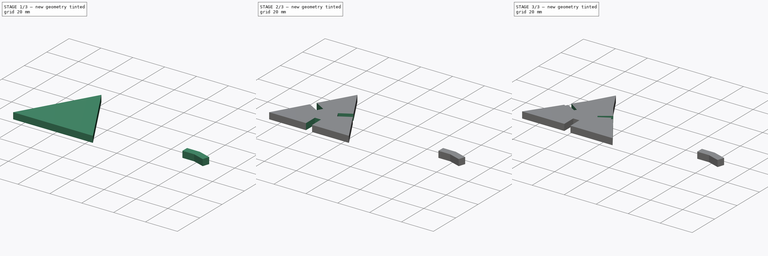
[diagram: build sequence overview — one tinted view per stage of 3, left to right]
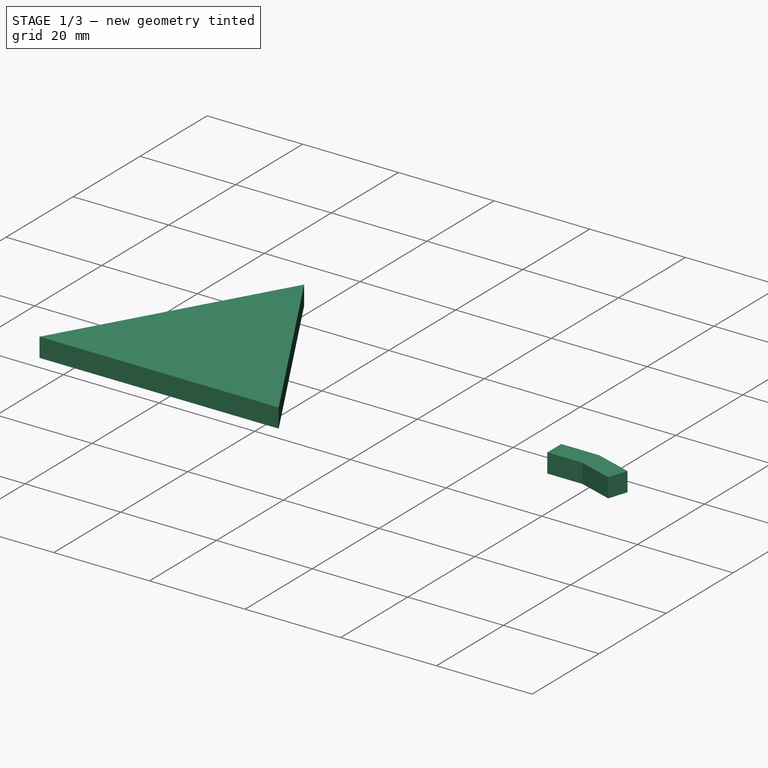
[diagram: stage 1 of 3 — iso view after this stage's code; geometry added in this stage tinted green]
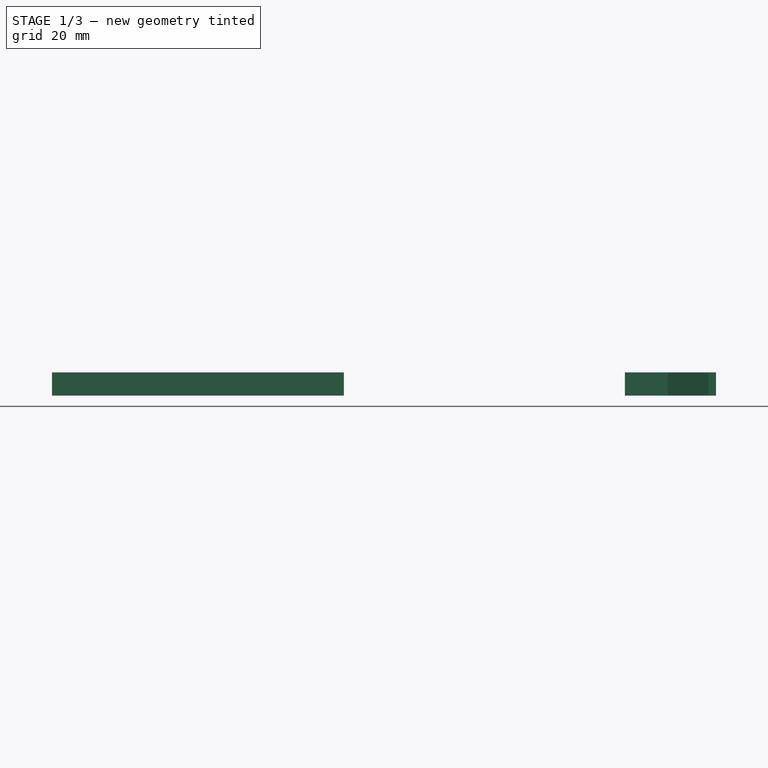
[diagram: stage 1 of 3 — front view after this stage's code; geometry added in this stage tinted green]
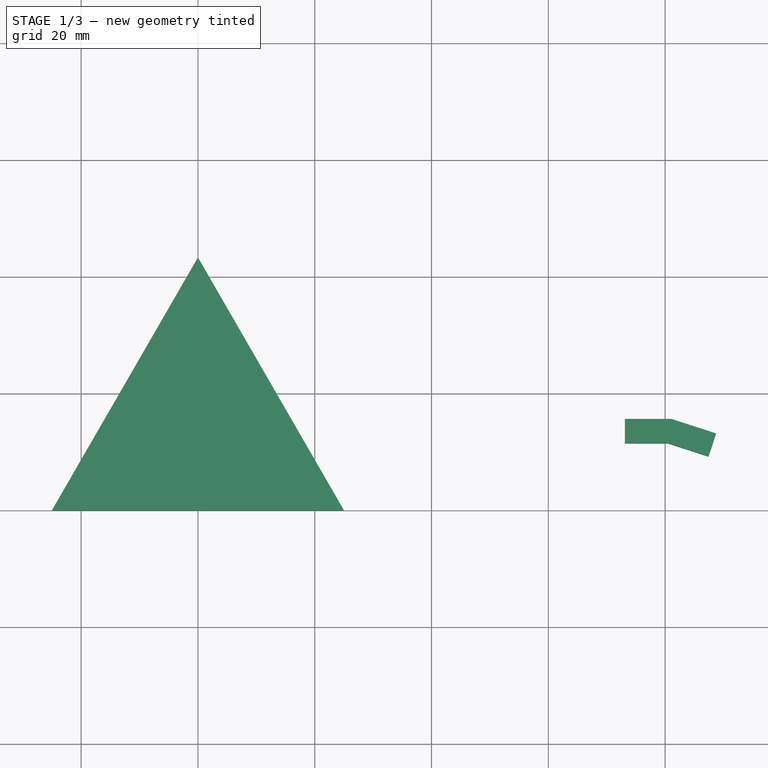
[diagram: stage 1 of 3 — top view after this stage's code; geometry added in this stage tinted green]
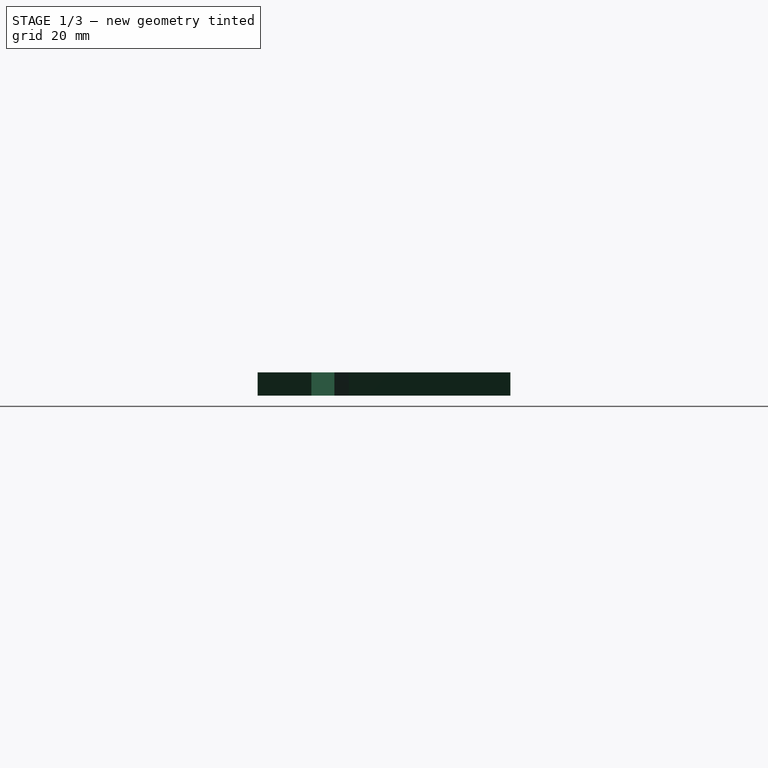
[diagram: stage 1 of 3 — right view after this stage's code; geometry added in this stage tinted green]
FCSTD DOCUMENT  (FreeCAD 0.18.4R)
Label: geodesic-dome
License: All rights reserved
LicenseURL: http://en.wikipedia.org/wiki/All_rights_reserved
objects: Sketcher::SketchObject×5, PartDesign::Pad×3, PartDesign::Body×3, PartDesign::Pocket×2, Spreadsheet::Sheet×1
note: 18 computed .brp shape members not serialized (recipe doc carries the construction recipe); baked Part::Feature solids carry a one-line shape summary decoded from their .brp

FEATURE [PartDesign::Body] Body  label="faceAAB"
  Group = -> [Sketch,Pad,Sketch001,Pocket]
  Origin = -> Origin
  Tip = -> Pocket
FEATURE [Sketcher::SketchObject] Sketch003
  MapMode = 5
  Support = -> [XY_Plane001]
  expr: Constraints[6] = data.height
  sketch-geometry (3):
    g0: LineSegment StartX=1.07e-14 StartY=43.3013 StartZ=0 EndX=-25 EndY=0 EndZ=0
    g1: LineSegment StartX=-25 StartY=0 StartZ=0 EndX=25 EndY=0 EndZ=0
    g2: LineSegment StartX=25 StartY=0 StartZ=0 EndX=1.07e-14 EndY=43.3013 EndZ=0
  constraints (8):
    c: Coincident(g0,g1)
    c: Coincident(g1,g2)
    c: Coincident(g0,g2)
    c: Angle(g1,g0) = 1.0472
    c: PointOnObject(g0,g-1)
    c: Symmetric(g0,g1,g-2)
    c: Distance(g0) = 50
    c: Equal(g2,g0)
FEATURE [PartDesign::Pad] Pad001
  Length = 4
  Length2 = 100
  Profile = -> Sketch003
  Type = 0
  expr: Length = data.thickness
FEATURE [PartDesign::Body] Body001  label="faceBBB"
  Group = -> [Sketch003,Pad001,Sketch002,Pocket001]
  Origin = -> Origin001
  Placement = pos=(70,0,0) rot=(0,0,1;0rad)
  Tip = -> Pocket001
FEATURE [Sketcher::SketchObject] Sketch004
  MapMode = 5
  Support = -> [XY_Plane002]
  expr: Constraints[13] = data.thickness_out
  expr: Constraints[12] = data.thickness_out
  expr: Constraints[11] = data.pocket
  expr: Constraints[10] = data.pocket
  sketch-geometry (6):
    g0: LineSegment StartX=73.1132 StartY=11.4838 StartZ=0 EndX=73.1132 EndY=15.6338 EndZ=0
    g1: LineSegment StartX=73.1132 StartY=15.6338 StartZ=0 EndX=81.1132 EndY=15.6338 EndZ=0
    g2: LineSegment StartX=81.1132 StartY=15.6338 StartZ=0 EndX=88.7216 EndY=13.1617 EndZ=0
    g3: LineSegment StartX=88.7216 StartY=13.1617 StartZ=0 EndX=87.4392 EndY=9.21483 EndZ=0
    g4: LineSegment StartX=87.4392 StartY=9.21483 StartZ=0 EndX=80.4559 EndY=11.4838 EndZ=0
    g5: LineSegment StartX=80.4559 StartY=11.4838 StartZ=0 EndX=73.1132 EndY=11.4838 EndZ=0
  constraints (16):
    c: Vertical(g0)
    c: Coincident(g0,g1)
    c: Coincident(g1,g2)
    c: Coincident(g2,g3)
    c: Coincident(g3,g4)
    c: Coincident(g4,g5)
    c: Coincident(g5,g0)
    c: Parallel(g1,g5)
    c: Angle(g2,g1,g1) = 0.314159
    c: Horizontal(g5)
    c: DistanceX(g1,g1) = 8
    c: Distance(g2) = 8
    c: DistanceY(g0,g0) = 4.15
    c: Distance(g3) = 4.15
    c: Perpendicular(g2,g3)
    c: Perpendicular(g3,g4)
FEATURE [PartDesign::Pad] Pad003
  Length = 4
  Length2 = 100
  Profile = -> Sketch004
  Type = 0
  expr: Length = data.thickness
FEATURE [PartDesign::Body] Body002  label="joint"
  Group = -> [Sketch004,Pad003]
  Origin = -> Origin002
  Placement = pos=(40,0,0) rot=(0,0,1;0rad)
  Tip = -> Pad003
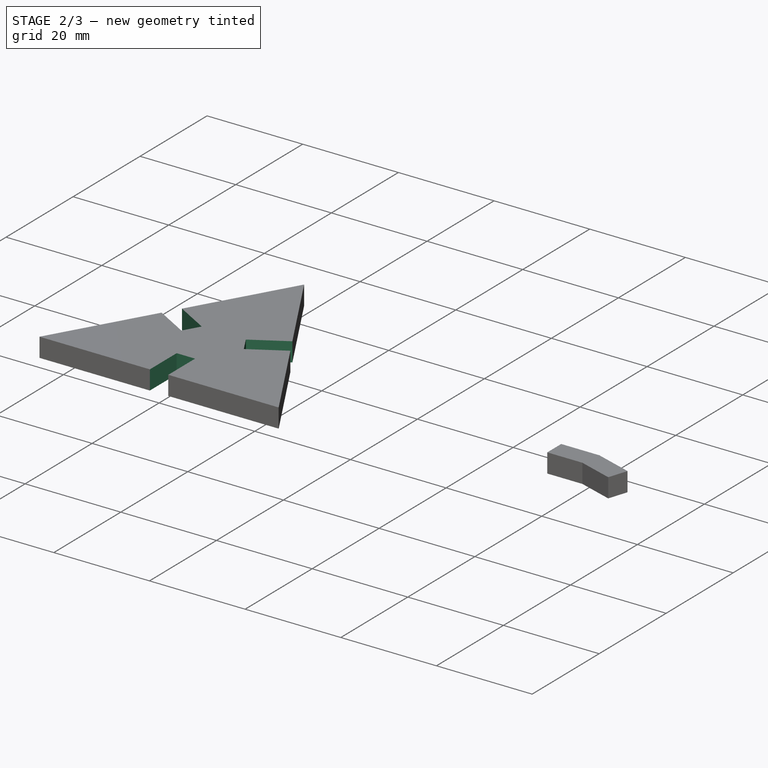
[diagram: stage 2 of 3 — iso view after this stage's code; geometry added in this stage tinted green]
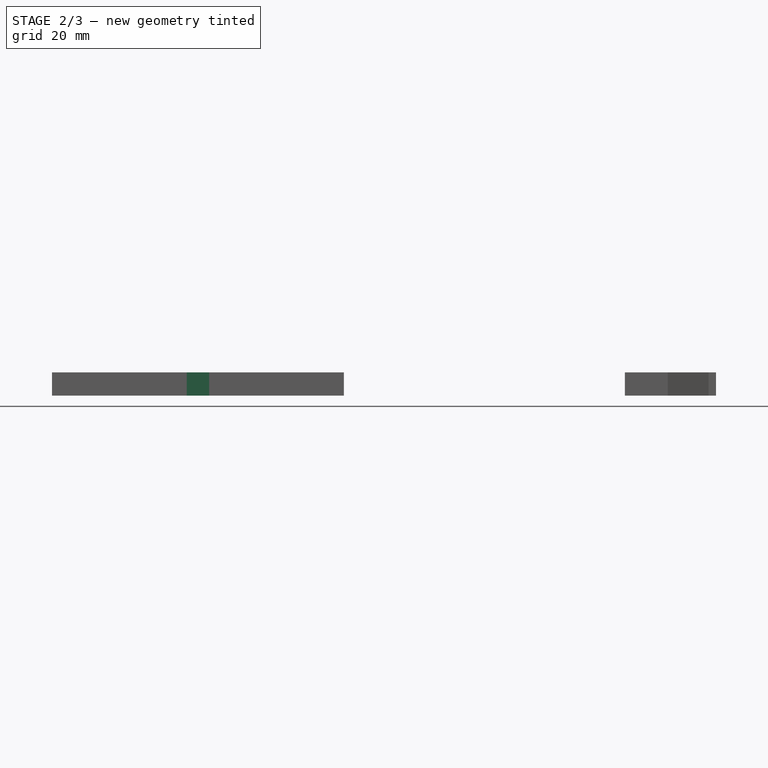
[diagram: stage 2 of 3 — front view after this stage's code; geometry added in this stage tinted green]
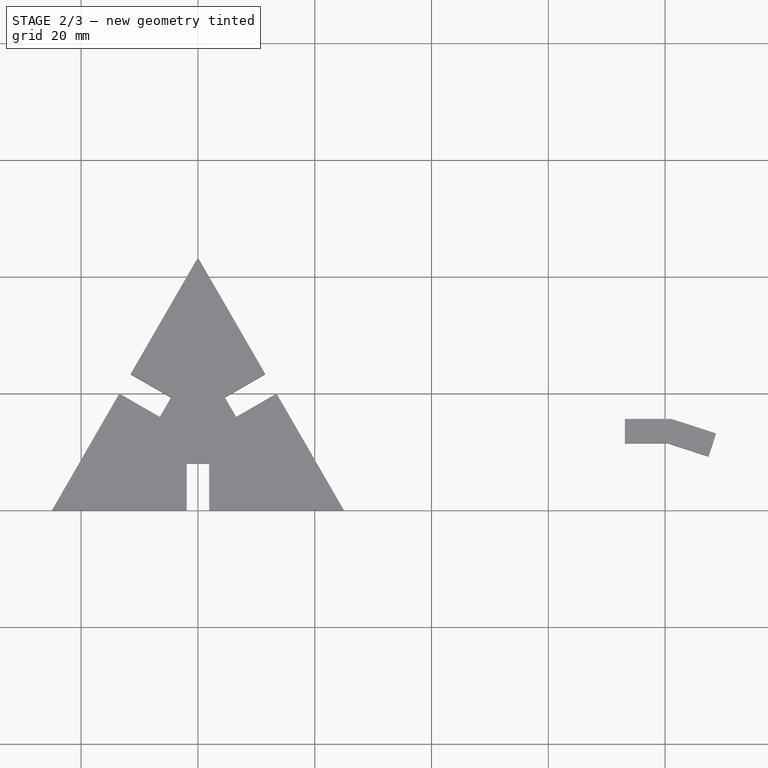
[diagram: stage 2 of 3 — top view after this stage's code; geometry added in this stage tinted green]
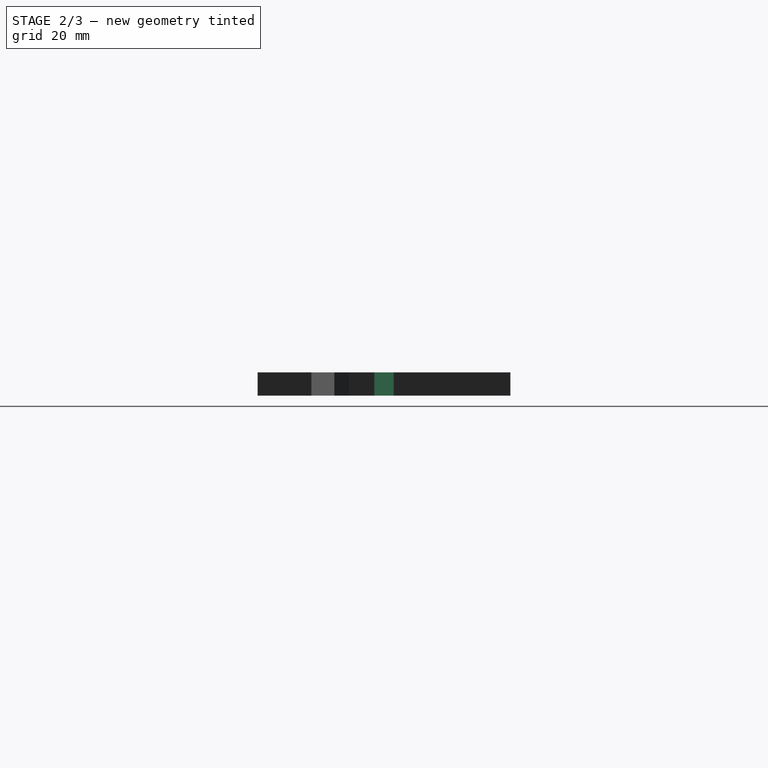
[diagram: stage 2 of 3 — right view after this stage's code; geometry added in this stage tinted green]
FEATURE [Sketcher::SketchObject] Sketch002
  ExternalGeometry = -> [Pad001]
  MapMode = 5
  Placement = pos=(0,0,4) rot=(0,0,1;0rad)
  Support = -> [Pad001]
  expr: Constraints[44] = data.pocket
  expr: Constraints[40] = data.thickness_int
  expr: Constraints[24] = data.pocket
  expr: Constraints[20] = data.thickness_int
  expr: Constraints[11] = data.pocket
  expr: Constraints[10] = data.thickness_int
  sketch-geometry (21):
    g0: LineSegment [constr] StartX=1.05e-14 StartY=43.3013 StartZ=0 EndX=1.05e-14 EndY=0 EndZ=0
    g1: LineSegment StartX=-1.925 StartY=0 StartZ=0 EndX=1.925 EndY=0 EndZ=0
    g2: LineSegment StartX=1.925 StartY=0 StartZ=0 EndX=1.925 EndY=8 EndZ=0
    g3: LineSegment StartX=1.925 StartY=8 StartZ=0 EndX=-1.925 EndY=8 EndZ=0
    g4: LineSegment StartX=-1.925 StartY=8 StartZ=0 EndX=-1.925 EndY=0 EndZ=0
    g5: LineSegment StartX=-13.4625 StartY=19.9835 StartZ=0 EndX=-11.5375 EndY=23.3177 EndZ=0
    g6: LineSegment StartX=-11.5375 StartY=23.3177 StartZ=0 EndX=-4.6093 EndY=19.3177 EndZ=0
    g7: LineSegment StartX=-4.6093 StartY=19.3177 StartZ=0 EndX=-6.5343 EndY=15.9835 EndZ=0
    g8: LineSegment StartX=-6.5343 StartY=15.9835 StartZ=0 EndX=-13.4625 EndY=19.9835 EndZ=0
    g9: LineSegment [constr] StartX=-13.4625 StartY=19.9835 StartZ=0 EndX=-4.6093 EndY=19.3177 EndZ=0
    g10: LineSegment [constr] StartX=-6.5343 StartY=15.9835 StartZ=0 EndX=-11.5375 EndY=23.3177 EndZ=0
    g11: GeomPoint X=-9.0359 Y=19.6506 Z=0
    g12: LineSegment [constr] StartX=-9.0359 StartY=19.6506 StartZ=0 EndX=-12.5 EndY=21.6506 EndZ=0
    g13: LineSegment StartX=11.5375 StartY=23.3177 StartZ=0 EndX=13.4625 EndY=19.9835 EndZ=0
    g14: LineSegment StartX=13.4625 StartY=19.9835 StartZ=0 EndX=6.5343 EndY=15.9835 EndZ=0
    g15: LineSegment StartX=6.5343 StartY=15.9835 StartZ=0 EndX=4.6093 EndY=19.3177 EndZ=0
    g16: LineSegment StartX=4.6093 StartY=19.3177 StartZ=0 EndX=11.5375 EndY=23.3177 EndZ=0
    g17: LineSegment [constr] StartX=11.5375 StartY=23.3177 StartZ=0 EndX=6.5343 EndY=15.9835 EndZ=0
    g18: LineSegment [constr] StartX=4.6093 StartY=19.3177 StartZ=0 EndX=13.4625 EndY=19.9835 EndZ=0
    g19: GeomPoint X=9.0359 Y=19.6506 Z=0
    g20: LineSegment [constr] StartX=9.0359 StartY=19.6506 StartZ=0 EndX=12.5 EndY=21.6506 EndZ=0
  constraints (54):
    c: PointOnObject(g0,g-1)
    c: Vertical(g0)
    c: Coincident(g1,g2)
    c: Coincident(g2,g3)
    c: Coincident(g3,g4)
    c: Coincident(g4,g1)
    c: Horizontal(g1)
    c: Vertical(g2)
    c: Vertical(g4)
    c: PointOnObject(g1,g-1)
    c: DistanceX(g3,g3) = 3.85
    c: DistanceY(g4,g4) = 8
    c: Symmetric(g3,g2,g0)
    c: Coincident(g0,g-3)
    c: PointOnObject(g5,g-4)
    c: PointOnObject(g5,g-4)
    c: Coincident(g5,g6)
    c: Coincident(g6,g7)
    c: Coincident(g7,g8)
    c: Coincident(g8,g5)
    c: Distance(g5) = 3.85
    c: Perpendicular(g5,g8)
    c: Perpendicular(g5,g6)
    c: Parallel(g7,g5)
    c: Distance(g6) = 8
    c: Coincident(g9,g5)
    c: Coincident(g9,g6)
    c: Coincident(g10,g7)
    c: Coincident(g10,g5)
    c: PointOnObject(g11,g10)
    c: PointOnObject(g11,g9)
    c: Coincident(g12,g11)
    c: Perpendicular(g5,g12)
    c: Symmetric(g-4,g-4,g12)
    c: PointOnObject(g13,g-5)
    c: PointOnObject(g13,g-5)
    c: Coincident(g13,g14)
    c: Coincident(g14,g15)
    c: Coincident(g15,g16)
    c: Coincident(g16,g13)
    c: Distance(g13) = 3.85
    c: Parallel(g15,g13)
    c: Parallel(g16,g14)
    c: Perpendicular(g-5,g14)
    c: Distance(g14) = 8
    c: Coincident(g17,g16)
    c: Coincident(g17,g14)
    c: Coincident(g18,g15)
    c: Coincident(g18,g14)
    c: PointOnObject(g19,g17)
    c: PointOnObject(g19,g18)
    c: Coincident(g20,g19)
    c: Perpendicular(g13,g20)
    c: Symmetric(g-5,g-5,g20)
FEATURE [PartDesign::Pocket] Pocket001
  BaseFeature = -> Pad001
  Length = 5
  Length2 = 100
  Profile = -> Sketch002
  Type = 1
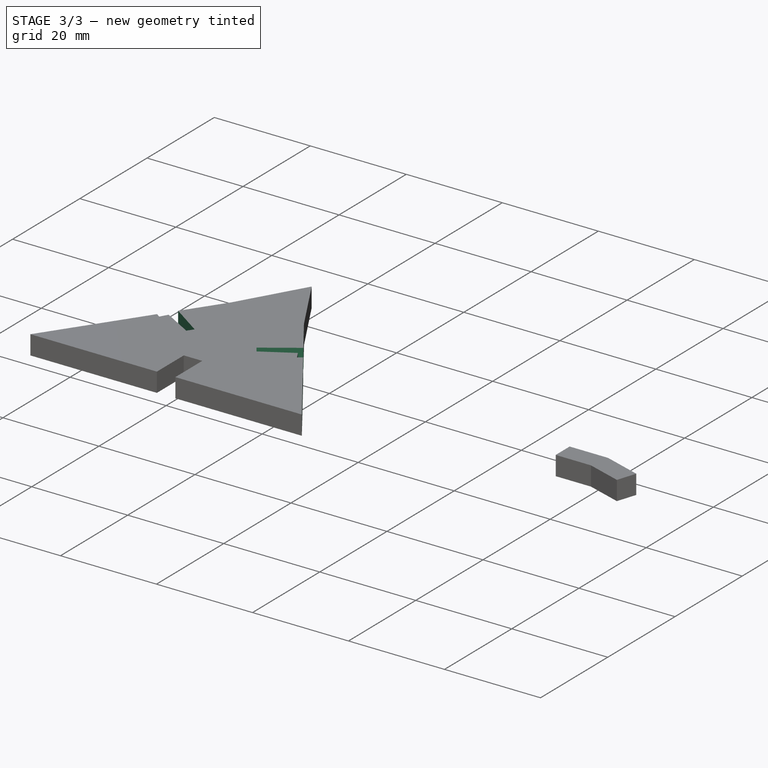
[diagram: stage 3 of 3 — iso view after this stage's code; geometry added in this stage tinted green]
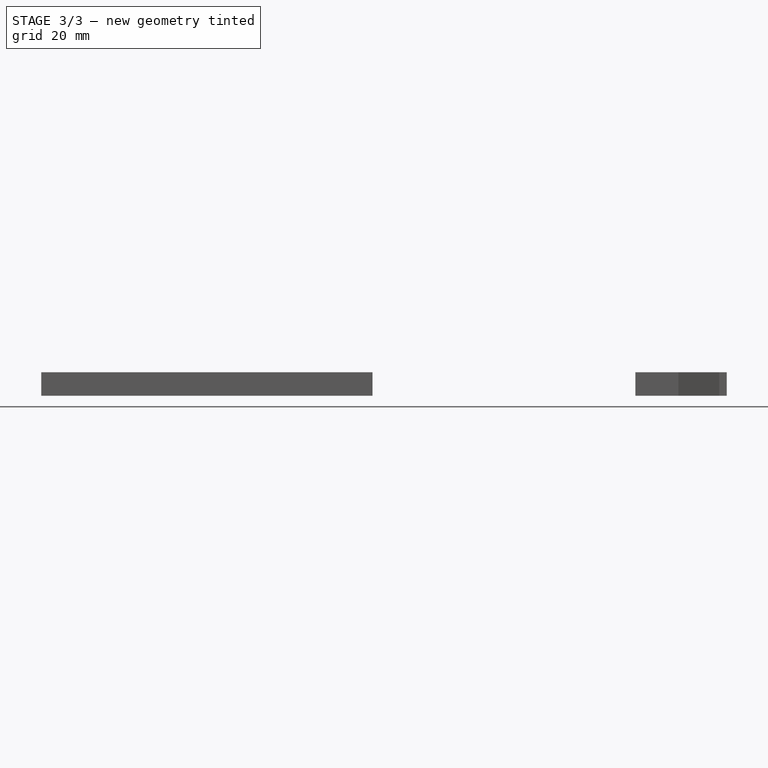
[diagram: stage 3 of 3 — front view after this stage's code; geometry added in this stage tinted green]
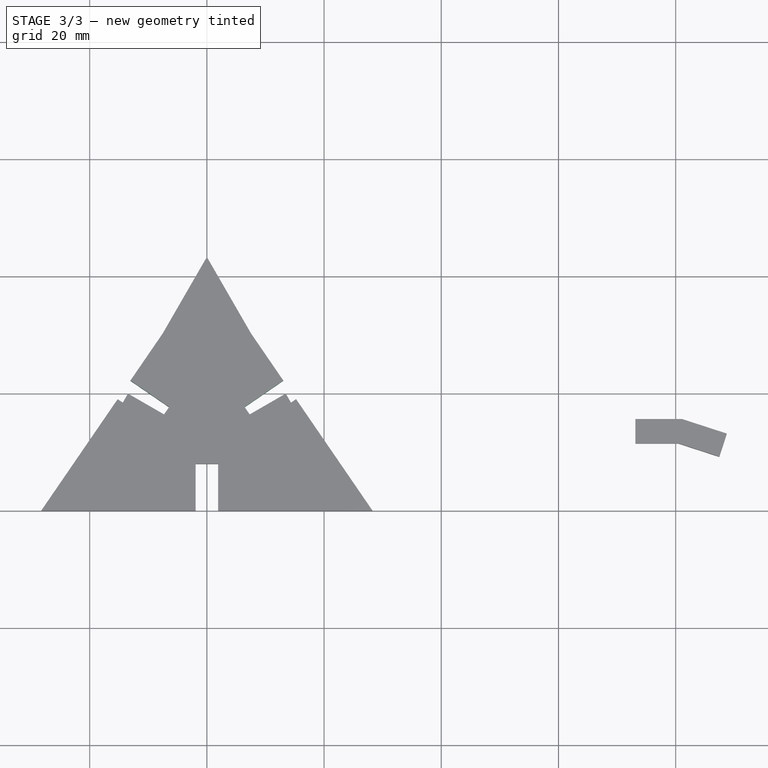
[diagram: stage 3 of 3 — top view after this stage's code; geometry added in this stage tinted green]
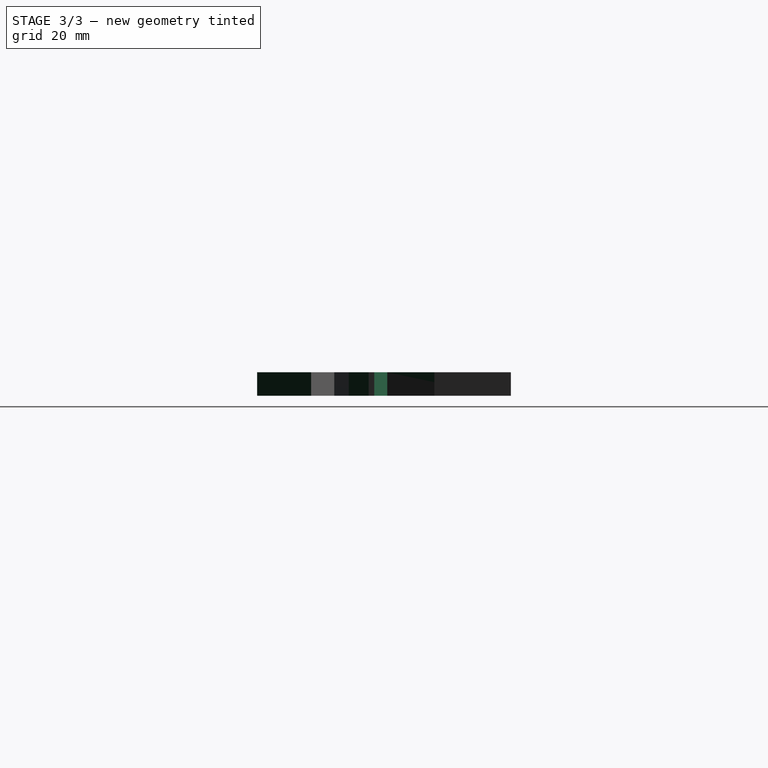
[diagram: stage 3 of 3 — right view after this stage's code; geometry added in this stage tinted green]
FEATURE [Spreadsheet::Sheet] Spreadsheet  label="data"
  cells = A1=tickness; B1(thickness)==4mm; A2=pocket size; B2(pocket)==8mm; A3=triangle height; B3(height)==50mm; A4=kerf; B4(kerf)==0.15mm; A5=thickness int; B5(thickness_int)==thickness - kerf; A6=thickness out; B6(thickness_out)==thickness + kerf
FEATURE [Sketcher::SketchObject] Sketch
  MapMode = 5
  Support = -> [XY_Plane]
  expr: Constraints[6] = data.height
  sketch-geometry (3):
    g0: LineSegment StartX=4.55778e-11 StartY=41.2409 StartZ=0 EndX=-28.2699 EndY=0 EndZ=0
    g1: LineSegment StartX=-28.2699 StartY=0 StartZ=0 EndX=28.2699 EndY=0 EndZ=0
    g2: LineSegment StartX=28.2699 StartY=0 StartZ=0 EndX=4.55778e-11 EndY=41.2409 EndZ=0
  constraints (8):
    c: Coincident(g0,g1)
    c: Coincident(g1,g2)
    c: Coincident(g0,g2)
    c: Angle(g1,g0) = 0.969879
    c: PointOnObject(g0,g-1)
    c: Symmetric(g0,g1,g-2)
    c: Distance(g0) = 50
    c: Equal(g0,g2)
FEATURE [PartDesign::Pad] Pad
  Length = 4
  Length2 = 100
  Profile = -> Sketch
  Type = 0
  expr: Length = data.thickness
FEATURE [Sketcher::SketchObject] Sketch001
  ExternalGeometry = -> [Pad]
  MapMode = 5
  Placement = pos=(0,0,4) rot=(0,0,1;0rad)
  Support = -> [Pad]
  expr: Constraints[44] = data.pocket
  expr: Constraints[40] = data.thickness_int
  expr: Constraints[24] = data.pocket
  expr: Constraints[20] = data.thickness_int
  expr: Constraints[11] = data.pocket
  expr: Constraints[10] = data.thickness_int
  sketch-geometry (21):
    g0: LineSegment [constr] StartX=4.55785e-11 StartY=41.2409 StartZ=0 EndX=4.55785e-11 EndY=0 EndZ=0
    g1: LineSegment StartX=-1.925 StartY=0 StartZ=0 EndX=1.925 EndY=0 EndZ=0
    g2: LineSegment StartX=1.925 StartY=0 StartZ=0 EndX=1.925 EndY=8 EndZ=0
    g3: LineSegment StartX=1.925 StartY=8 StartZ=0 EndX=-1.925 EndY=8 EndZ=0
    g4: LineSegment StartX=-1.925 StartY=8 StartZ=0 EndX=-1.925 EndY=0 EndZ=0
    g5: LineSegment StartX=-15.2234 StartY=19.0327 StartZ=0 EndX=-13.0466 EndY=22.2082 EndZ=0
    g6: LineSegment StartX=-13.0466 StartY=22.2082 StartZ=0 EndX=-6.44804 EndY=17.685 EndZ=0
    g7: LineSegment StartX=-6.44804 StartY=17.685 StartZ=0 EndX=-8.62483 EndY=14.5095 EndZ=0
    g8: LineSegment StartX=-8.62483 StartY=14.5095 StartZ=0 EndX=-15.2234 EndY=19.0327 EndZ=0
    g9: LineSegment [constr] StartX=-15.2234 StartY=19.0327 StartZ=0 EndX=-6.44804 EndY=17.685 EndZ=0
    g10: LineSegment [constr] StartX=-8.62483 StartY=14.5095 StartZ=0 EndX=-13.0466 EndY=22.2082 EndZ=0
    g11: GeomPoint X=-10.8357 Y=18.3588 Z=0
    g12: LineSegment [constr] StartX=-10.8357 StartY=18.3588 StartZ=0 EndX=-14.135 EndY=20.6204 EndZ=0
    g13: LineSegment StartX=13.0466 StartY=22.2082 StartZ=0 EndX=15.2234 EndY=19.0327 EndZ=0
    g14: LineSegment StartX=15.2234 StartY=19.0327 StartZ=0 EndX=8.62483 EndY=14.5095 EndZ=0
    g15: LineSegment StartX=8.62483 StartY=14.5095 StartZ=0 EndX=6.44804 EndY=17.685 EndZ=0
    g16: LineSegment StartX=6.44804 StartY=17.685 StartZ=0 EndX=13.0466 EndY=22.2082 EndZ=0
    g17: LineSegment [constr] StartX=13.0466 StartY=22.2082 StartZ=0 EndX=8.62483 EndY=14.5095 EndZ=0
    g18: LineSegment [constr] StartX=6.44804 StartY=17.685 StartZ=0 EndX=15.2234 EndY=19.0327 EndZ=0
    g19: GeomPoint X=10.8357 Y=18.3588 Z=0
    g20: LineSegment [constr] StartX=10.8357 StartY=18.3588 StartZ=0 EndX=14.135 EndY=20.6204 EndZ=0
  constraints (54):
    c: PointOnObject(g0,g-1)
    c: Vertical(g0)
    c: Coincident(g1,g2)
    c: Coincident(g2,g3)
    c: Coincident(g3,g4)
    c: Coincident(g4,g1)
    c: Horizontal(g1)
    c: Vertical(g2)
    c: Vertical(g4)
    c: PointOnObject(g1,g-1)
    c: DistanceX(g3,g3) = 3.85
    c: DistanceY(g4,g4) = 8
    c: Symmetric(g3,g2,g0)
    c: Coincident(g0,g-3)
    c: PointOnObject(g5,g-4)
    c: PointOnObject(g5,g-4)
    c: Coincident(g5,g6)
    c: Coincident(g6,g7)
    c: Coincident(g7,g8)
    c: Coincident(g8,g5)
    c: Distance(g5) = 3.85
    c: Perpendicular(g5,g8)
    c: Perpendicular(g5,g6)
    c: Parallel(g7,g5)
    c: Distance(g6) = 8
    c: Coincident(g9,g5)
    c: Coincident(g9,g6)
    c: Coincident(g10,g7)
    c: Coincident(g10,g5)
    c: PointOnObject(g11,g10)
    c: PointOnObject(g11,g9)
    c: Coincident(g12,g11)
    c: Perpendicular(g5,g12)
    c: Symmetric(g-4,g-4,g12)
    c: PointOnObject(g13,g-5)
    c: PointOnObject(g13,g-5)
    c: Coincident(g13,g14)
    c: Coincident(g14,g15)
    c: Coincident(g15,g16)
    c: Coincident(g16,g13)
    c: Distance(g13) = 3.85
    c: Parallel(g15,g13)
    c: Parallel(g16,g14)
    c: Perpendicular(g-5,g14)
    c: Distance(g14) = 8
    c: Coincident(g17,g16)
    c: Coincident(g17,g14)
    c: Coincident(g18,g15)
    c: Coincident(g18,g14)
    c: PointOnObject(g19,g17)
    c: PointOnObject(g19,g18)
    c: Coincident(g20,g19)
    c: Perpendicular(g13,g20)
    c: Symmetric(g-5,g-5,g20)
FEATURE [PartDesign::Pocket] Pocket
  BaseFeature = -> Pad
  Length = 5
  Length2 = 100
  Profile = -> Sketch001
  Type = 1
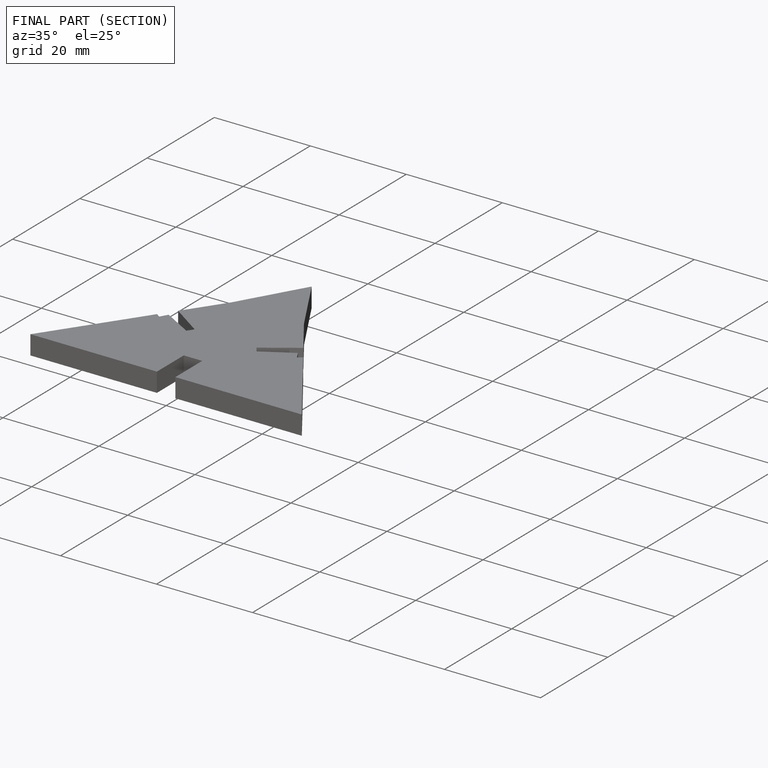
[diagram: finished part — half-section view (interior)]
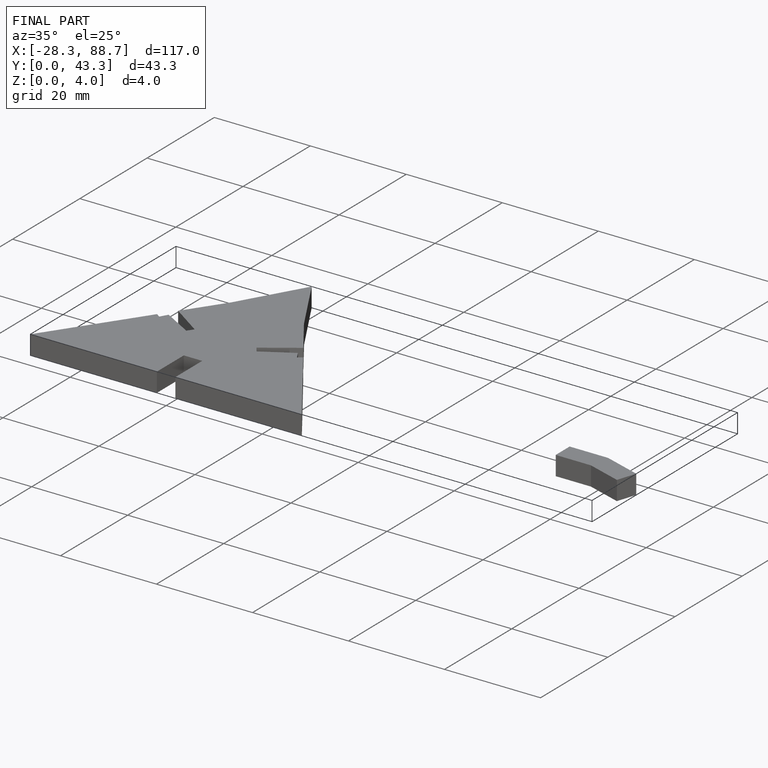
[diagram: finished part — iso view with bounding-box wireframe]
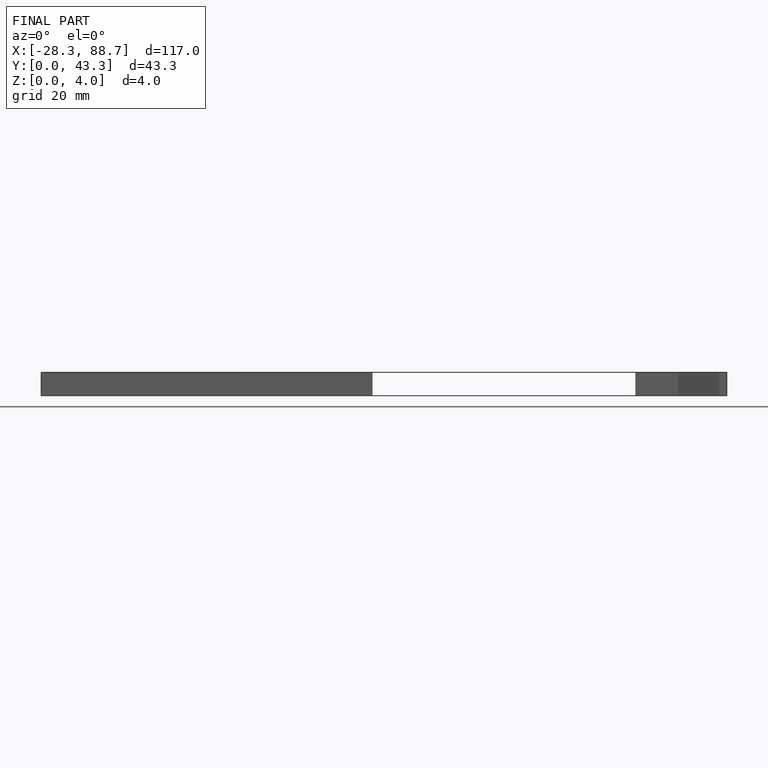
[diagram: finished part — front view with bounding-box wireframe]
